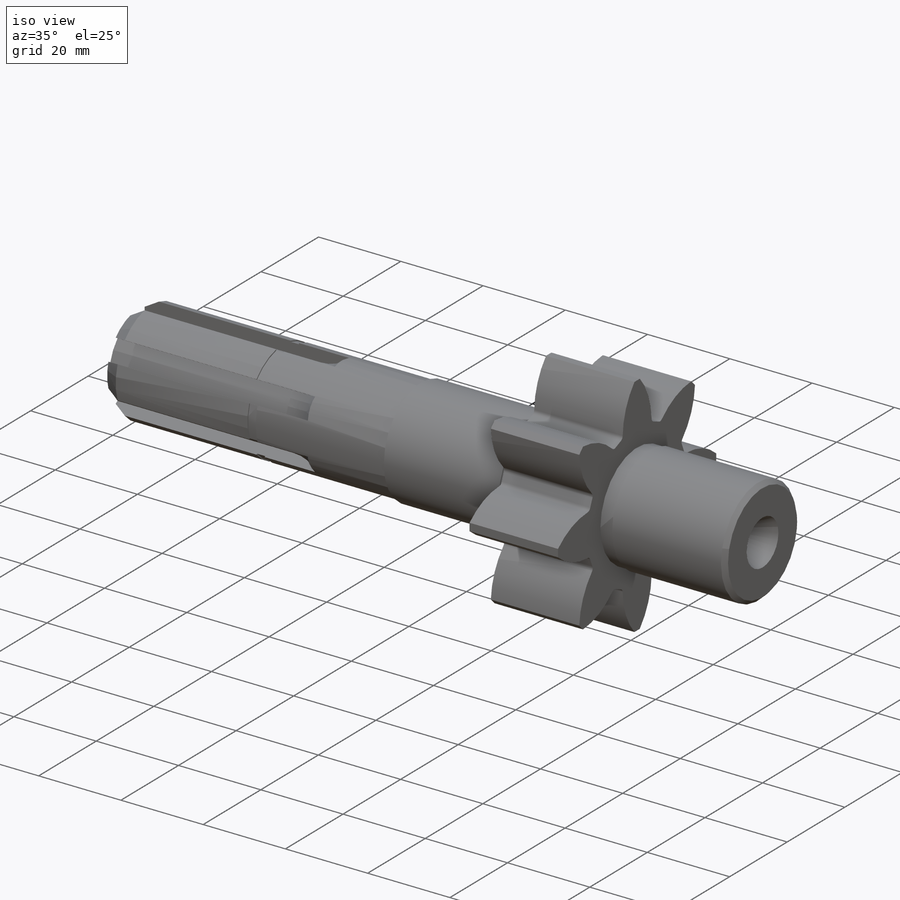
[diagram: iso view]
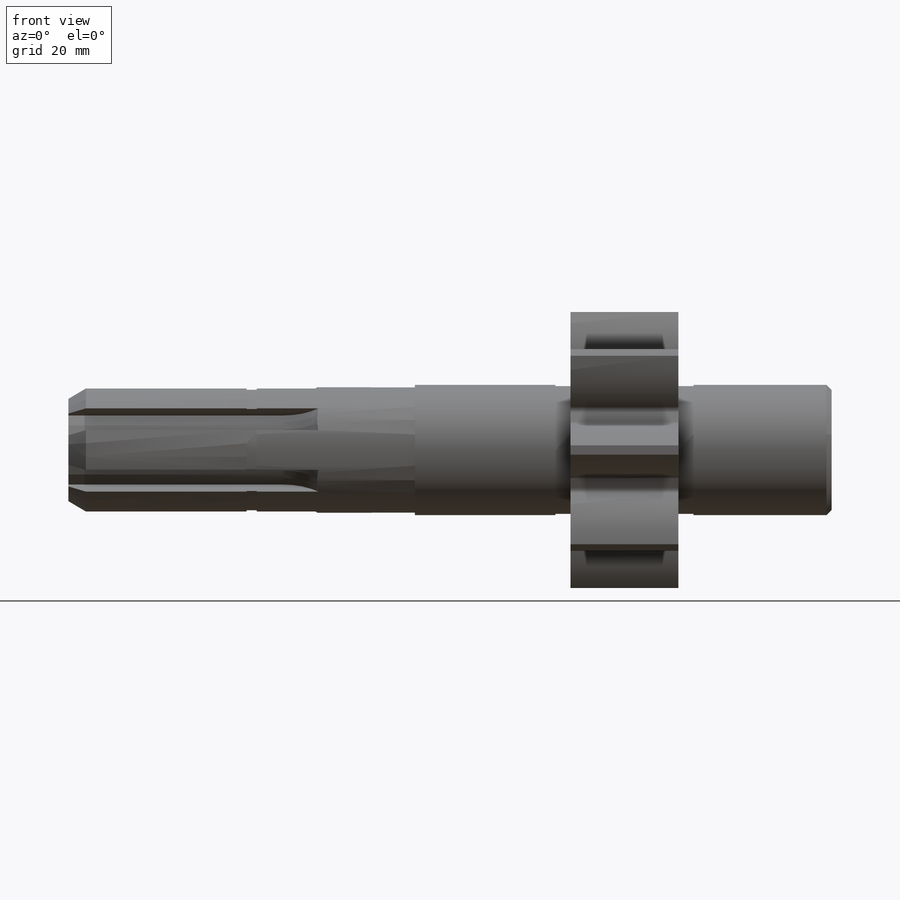
[diagram: front view]
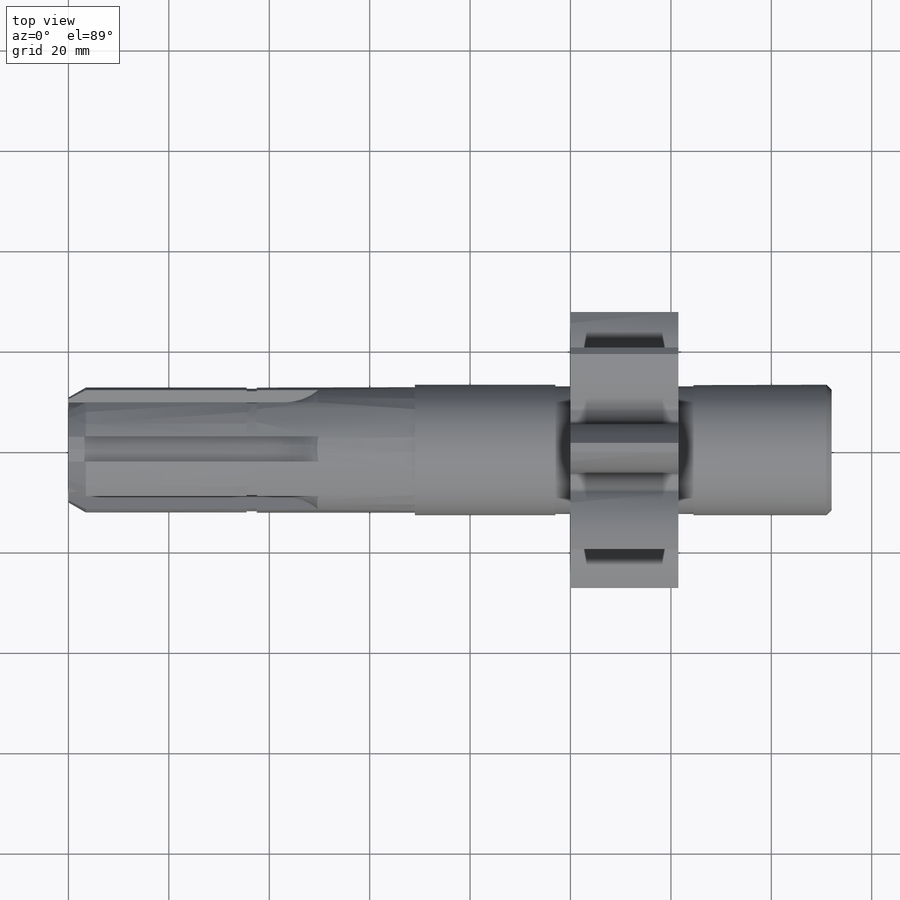
[diagram: top view]
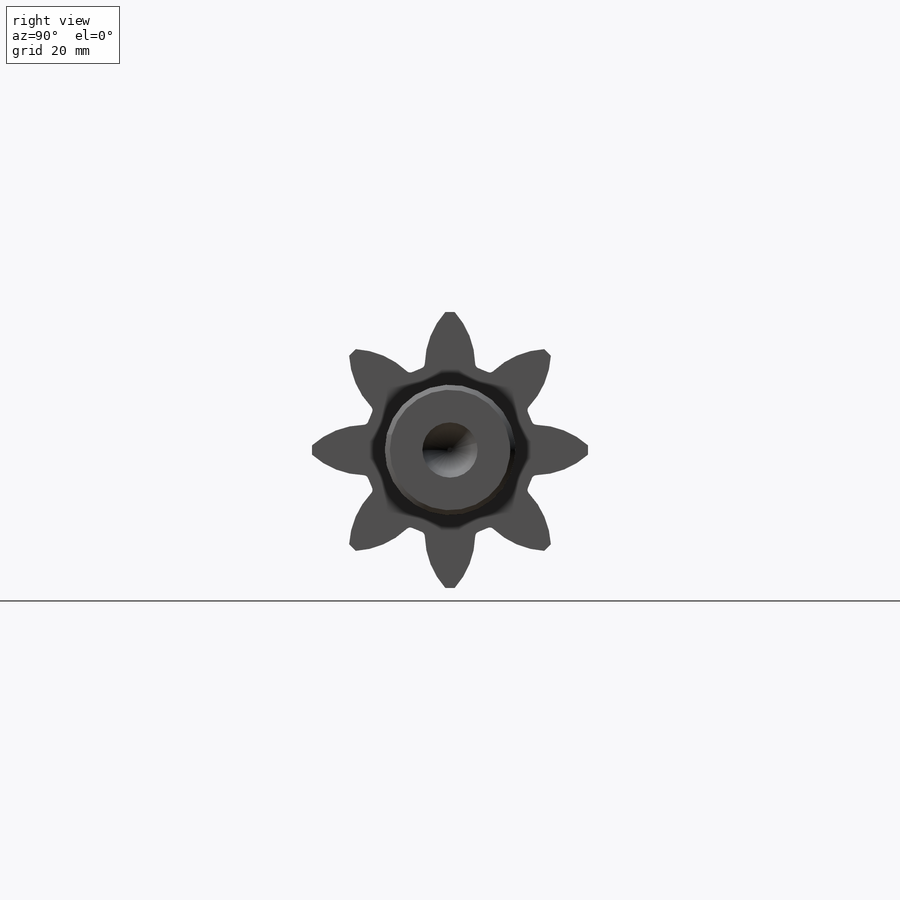
[diagram: right view]
SOLIDWORKS PART (.sldprt)
format: sldprt  version: not decoded by parser v0  size: 430,592 bytes
history: native  units: mm
features: sketch x14, extrude x6, plane x3, pattern_circular x2, hole x2, cut_revolve x2, chamfer x2, material x1, sweep x1, fillet x1 (+8 scaffold rows collapsed)
feature tree (42):
  scaffold x8  (default folders/planes/origin — collapsed)
  material  " 40Х ГОСТ 4543-71"
  plane  "Спереди"
  plane  "Сверху"
  plane  "Справа"
  sketch  "Эскиз1"  dims[D1=25.0mm]
  extrude  "Бобышка-Вытянуть1"  Depth=50mm
  sketch  "Эскиз3"  dims[D1=25.0mm]
  extrude  "Бобышка-Вытянуть2"  Depth=19mm
  sketch  "Эскиз4"  dims[D1=26.0mm]
  extrude  "Бобышка-Вытянуть3"  Depth=31mm
  sketch  "Эскиз5"  dims[D1=34.5mm]
  extrude  "Бобышка-Вытянуть4"  Depth=21.5mm
  sketch  "Эскиз6"  dims[D1=26.0mm]
  extrude  "Бобышка-Вытянуть5"  Depth=30.5mm
  sketch  "Эскиз7"  dims[D1=19.5mm D2=25.0mm D3=5.0mm]
  sketch  "Эскиз8"  dims[D1=10.0mm D2=~9.421953mm D3=50.0mm]
  sweep  "Вырез-По траектории1"
  pattern_circular  "Круговой массив1"  Count=6 Angle=360deg
  hole  "Отверстие1"  [1 undecoded]
  sketch  "Эскиз10"
  sketch  "Эскиз9"  dims[Внутренний диаметр=1.0mm Глубина=10.5mm Наружный диаметр=11.0mm]
  hole  "Отверстие2"  Diameter=40mm Depth=100mm
  sketch  "Эскиз13"
  sketch  "Эскиз14"  dims[Major Ø=40.0mm Depth=100.0mm Drill Angle=118.0deg Minor Ø=20.0mm Внутренний Диаметр=1.0mm Глубина=11.0mm Наружный диаметр=10.5mm Угол заточки сверла=118.0deg]
  sketch  "Эскиз15"  dims[D1=35.5mm D2=2.0mm D3=12.25mm D4=3.0mm]
  cut_revolve  "Вырез-Повернуть1"  Angle=360deg
  chamfer  "Фаска1"  Distance=2mm Angle=60deg
  chamfer  "Фаска2"  Distance=1mm Angle=45deg
  sketch  "Эскиз16"  dims[c1.D1=44.0mm c1.D2=55.0mm c1.D4=32.0mm c1.D3=27.5mm c2.D3=11.25deg]
  extrude  "Бобышка-Вытянуть6"  [1 undecoded]
  fillet  "Скругление1"  Radius=1mm
  pattern_circular  "Круговой массив2"  Count=8 Angle=360deg
  sketch  "Эскиз18"  dims[D1=25.5mm D2=3.0mm D3=3.0mm]
  cut_revolve  "Вырез-Повернуть2"  Angle=360deg
decode coverage: 25 of 30 modeling features carry decoded parameters
note: ~ marks probable driven/reference dimensions
note: 2 parameter values undecoded
note: suppression state not decoded; provenance and decode notes live in map.json
